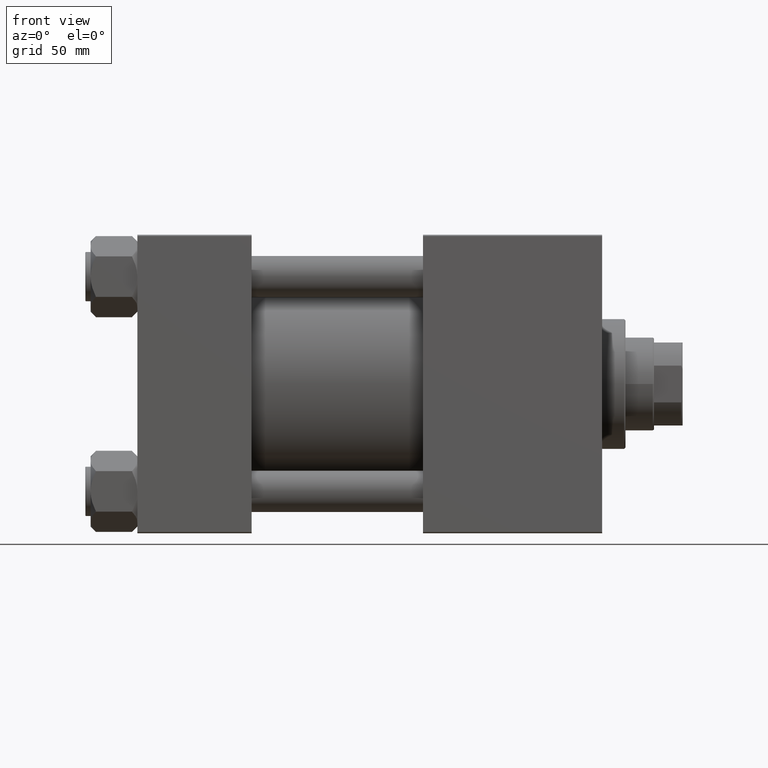
[diagram: clean part render]
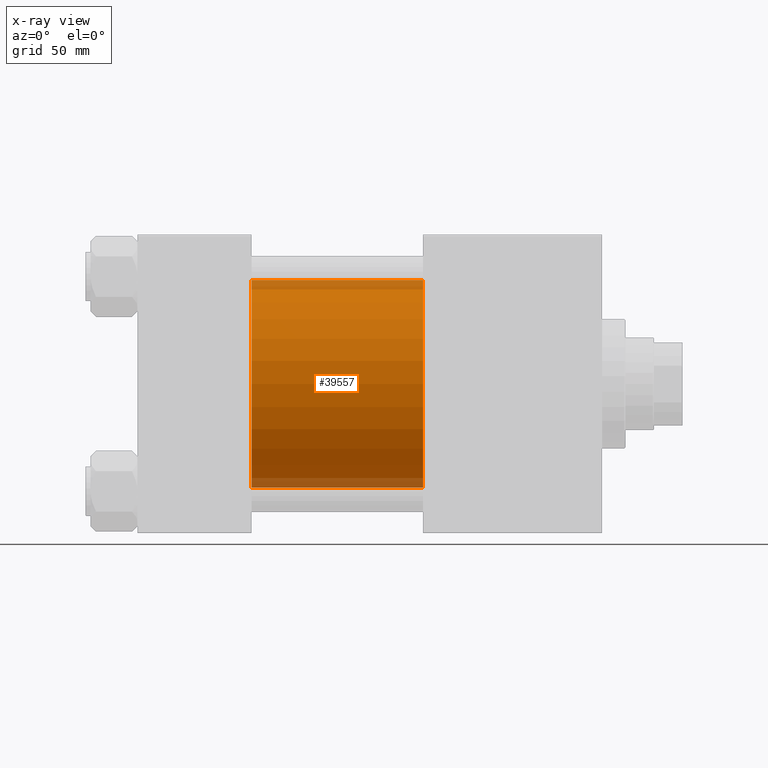
[diagram: x-ray — body ghosted, one internal face saturated and labeled with its STEP entity id]
A machine part, front view, then the same camera in x-ray: the body is ghosted and one INTERNAL B-rep face — a face not visible from any outside direction — is saturated and labeled: STEP entity #39557.
In plain terms, the highlighted cylindrical surface (partial cylindrical patch) has radius 40 mm, axis along (-1, -0, -0).
Its self-contained STEP definition (entity closure, byte-faithful):
#1281 = AXIS2_PLACEMENT_3D ( 'NONE', #25749, #41356, #6286 ) ;
#2595 = EDGE_CURVE ( 'NONE', #32627, #21281, #13206, .T. ) ;
#3764 = DIRECTION ( 'NONE',  ( -1.000000000000000000, -0.000000000000000000, -0.000000000000000000 ) ) ;
#6286 = DIRECTION ( 'NONE',  ( 0.000000000000000000, 0.000000000000000000, -1.000000000000000000 ) ) ;
#8391 = ORIENTED_EDGE ( 'NONE', *, *, #16138, .T. ) ;
#8865 = CARTESIAN_POINT ( 'NONE',  ( 110.0000000000000000, -2.602085213965210642E-15, 40.00000000000000000 ) ) ;
#9870 = EDGE_CURVE ( 'NONE', #21281, #22824, #40206, .T. ) ;
#12694 = ORIENTED_EDGE ( 'NONE', *, *, #2595, .F. ) ;
#13206 = LINE ( 'NONE', #8865, #22077 ) ;
#14876 = AXIS2_PLACEMENT_3D ( 'NONE', #21371, #36991, #40320 ) ;
#15544 = CARTESIAN_POINT ( 'NONE',  ( 110.0000000000000000, -2.602085213965210642E-15, 0.000000000000000000 ) ) ;
#16138 = EDGE_CURVE ( 'NONE', #31972, #22824, #35229, .T. ) ;
#16689 = EDGE_LOOP ( 'NONE', ( #44343, #8391, #26525, #12694 ) ) ;
#19378 = DIRECTION ( 'NONE',  ( 0.000000000000000000, 0.000000000000000000, 1.000000000000000000 ) ) ;
#21281 = VERTEX_POINT ( 'NONE', #39864 ) ;
#21371 = CARTESIAN_POINT ( 'NONE',  ( 44.00000000000000000, -2.602085213965210642E-15, 0.000000000000000000 ) ) ;
#22077 = VECTOR ( 'NONE', #40594, 1000.000000000000000 ) ;
#22824 = VERTEX_POINT ( 'NONE', #48497 ) ;
#23431 = EDGE_CURVE ( 'NONE', #32627, #31972, #34827, .T. ) ;
#25749 = CARTESIAN_POINT ( 'NONE',  ( 110.0000000000000000, -2.602085213965210642E-15, 0.000000000000000000 ) ) ;
#26525 = ORIENTED_EDGE ( 'NONE', *, *, #9870, .F. ) ;
#27067 = CYLINDRICAL_SURFACE ( 'NONE', #40695, 40.00000000000000000 ) ;
#31632 = DIRECTION ( 'NONE',  ( -1.000000000000000000, -0.000000000000000000, -0.000000000000000000 ) ) ;
#31972 = VERTEX_POINT ( 'NONE', #33026 ) ;
#32627 = VERTEX_POINT ( 'NONE', #37512 ) ;
#33026 = CARTESIAN_POINT ( 'NONE',  ( 110.0000000000000000, 2.296501982624201990E-15, -40.00000000000000000 ) ) ;
#34827 = CIRCLE ( 'NONE', #1281, 40.00000000000000000 ) ;
#35229 = LINE ( 'NONE', #35480, #36338 ) ;
#35480 = CARTESIAN_POINT ( 'NONE',  ( 110.0000000000000000, 2.296501982624201990E-15, -40.00000000000000000 ) ) ;
#36338 = VECTOR ( 'NONE', #31632, 1000.000000000000000 ) ;
#36991 = DIRECTION ( 'NONE',  ( 1.000000000000000000, 0.000000000000000000, 0.000000000000000000 ) ) ;
#37512 = CARTESIAN_POINT ( 'NONE',  ( 110.0000000000000000, -2.602085213965210642E-15, 40.00000000000000000 ) ) ;
#39557 = ADVANCED_FACE ( 'NONE', ( #46540 ), #27067, .F. ) ;
#39864 = CARTESIAN_POINT ( 'NONE',  ( 44.00000000000000000, -2.602085213965210642E-15, 40.00000000000000000 ) ) ;
#40206 = CIRCLE ( 'NONE', #14876, 40.00000000000000000 ) ;
#40320 = DIRECTION ( 'NONE',  ( 0.000000000000000000, 0.000000000000000000, -1.000000000000000000 ) ) ;
#40594 = DIRECTION ( 'NONE',  ( -1.000000000000000000, -0.000000000000000000, -0.000000000000000000 ) ) ;
#40695 = AXIS2_PLACEMENT_3D ( 'NONE', #15544, #3764, #19378 ) ;
#41356 = DIRECTION ( 'NONE',  ( 1.000000000000000000, 0.000000000000000000, 0.000000000000000000 ) ) ;
#44343 = ORIENTED_EDGE ( 'NONE', *, *, #23431, .T. ) ;
#46540 = FACE_OUTER_BOUND ( 'NONE', #16689, .T. ) ;
#48497 = CARTESIAN_POINT ( 'NONE',  ( 44.00000000000000000, 2.296501982624201990E-15, -40.00000000000000000 ) ) ;